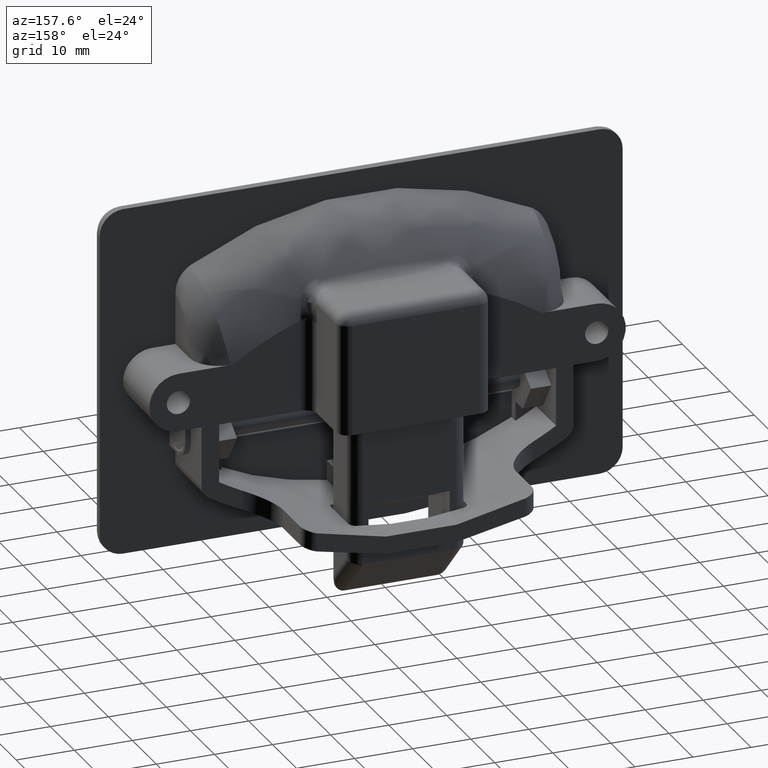
[diagram: clean part render]
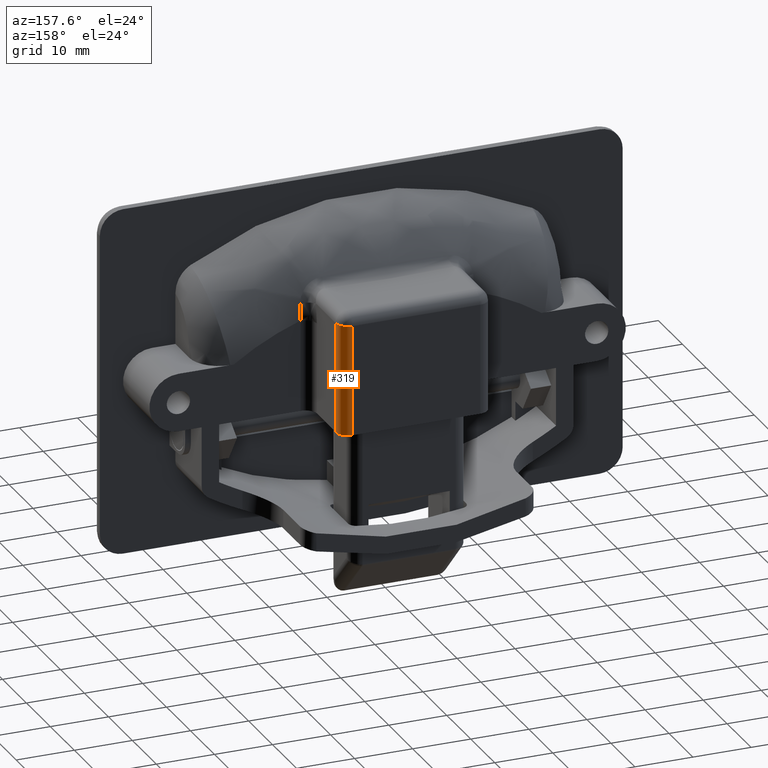
[diagram: same view with one face highlighted and labeled with its STEP entity id]
A machine part, auxiliary view. The second image highlights one B-rep face of the part: STEP entity #319.
In plain terms, the highlighted cylindrical surface (edge-blend (fillet) strip) has radius 2 mm, axis along (-0, -0, -1).
Its self-contained STEP definition (entity closure, byte-faithful):
#319=ADVANCED_FACE('',(#2085),#2084,.T.);
#2084=CYLINDRICAL_SURFACE('',#4642,2.00000000000E+00);
#2085=FACE_OUTER_BOUND('',#4643,.T.);
#4639=CARTESIAN_POINT('',(1.10000000000E+01,2.10000000000E+01,0.00000000000E+00));
#4640=DIRECTION('',(-0.00000000000E+00,-0.00000000000E+00,-1.00000000000E+00));
#4641=DIRECTION('',(-1.00000000000E+00,-0.00000000000E+00,-0.00000000000E+00));
#4642=AXIS2_PLACEMENT_3D('',#4639,#4640,#4641);
#4643=EDGE_LOOP('',(#5925,#5926,#5927,#5928));
#5925=ORIENTED_EDGE('',*,*,#6687,.F.);
#5926=ORIENTED_EDGE('',*,*,#6611,.F.);
#5927=ORIENTED_EDGE('',*,*,#6688,.F.);
#5928=ORIENTED_EDGE('',*,*,#6588,.F.);
#6588=EDGE_CURVE('',#9474,#9481,#9482,.T.);
#6611=EDGE_CURVE('',#9630,#8318,#9637,.T.);
#6687=EDGE_CURVE('',#8318,#9474,#10119,.T.);
#6688=EDGE_CURVE('',#9481,#9630,#10125,.T.);
#8318=VERTEX_POINT('',#11535);
#9474=VERTEX_POINT('',#12692);
#9481=VERTEX_POINT('',#12696);
#9482=LINE('',#12697,#12698);
#9630=VERTEX_POINT('',#12826);
#9637=LINE('',#12830,#12831);
#10119=CIRCLE('',#13199,2.00000000000E+00);
#10125=CIRCLE('',#13203,2.00000000000E+00);
#11535=CARTESIAN_POINT('',(1.30000000000E+01,2.10000000000E+01,4.40000000000E+01));
#12692=CARTESIAN_POINT('',(1.10000000000E+01,2.30000000000E+01,4.40000000000E+01));
#12696=CARTESIAN_POINT('',(1.10000000000E+01,2.30000000000E+01,2.50000000001E+01));
#12697=CARTESIAN_POINT('',(1.10000000000E+01,2.30000000000E+01,4.40000000000E+01));
#12698=VECTOR('',#12699,1.89999999999E+01);
#12699=DIRECTION('',(0.00000000000E+00,0.00000000000E+00,-1.00000000000E+00));
#12826=CARTESIAN_POINT('',(1.30000000000E+01,2.10000000000E+01,2.50000000001E+01));
#12830=CARTESIAN_POINT('',(1.30000000000E+01,2.10000000000E+01,2.50000000001E+01));
#12831=VECTOR('',#12832,1.89999999999E+01);
#12832=DIRECTION('',(0.00000000000E+00,0.00000000000E+00,1.00000000000E+00));
#13196=CARTESIAN_POINT('',(1.10000000000E+01,2.10000000000E+01,4.40000000000E+01));
#13197=DIRECTION('',(-0.00000000000E+00,0.00000000000E+00,1.00000000000E+00));
#13198=DIRECTION('',(-1.00000000000E+00,-0.00000000000E+00,-0.00000000000E+00));
#13199=AXIS2_PLACEMENT_3D('',#13196,#13197,#13198);
#13200=CARTESIAN_POINT('',(1.10000000000E+01,2.10000000000E+01,2.50000000001E+01));
#13201=DIRECTION('',(2.03114434993E-12,0.00000000000E+00,-1.00000000000E+00));
#13202=DIRECTION('',(1.00000000000E+00,-0.00000000000E+00,2.03114434993E-12));
#13203=AXIS2_PLACEMENT_3D('',#13200,#13201,#13202);